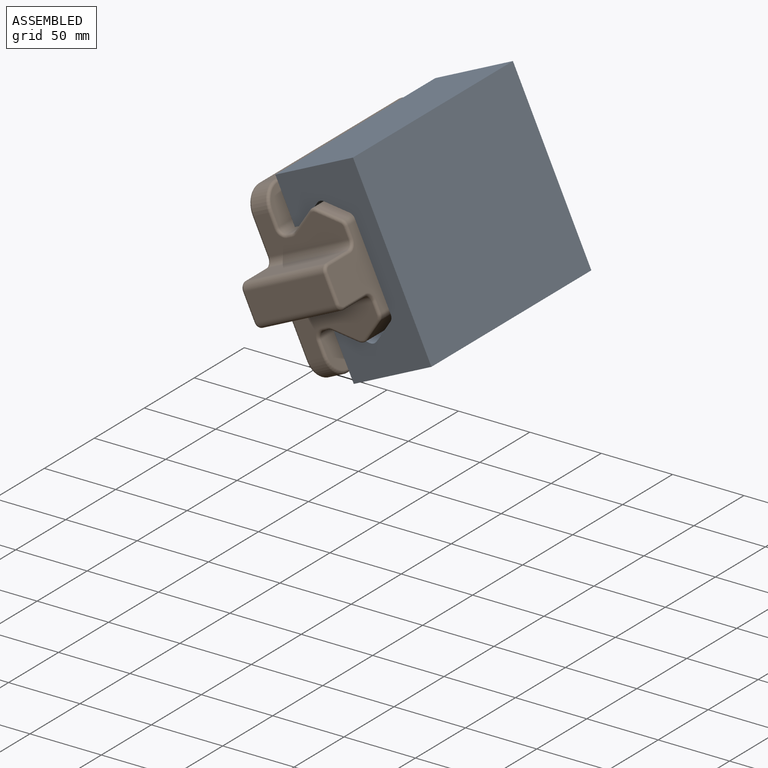
[diagram: assembled view]
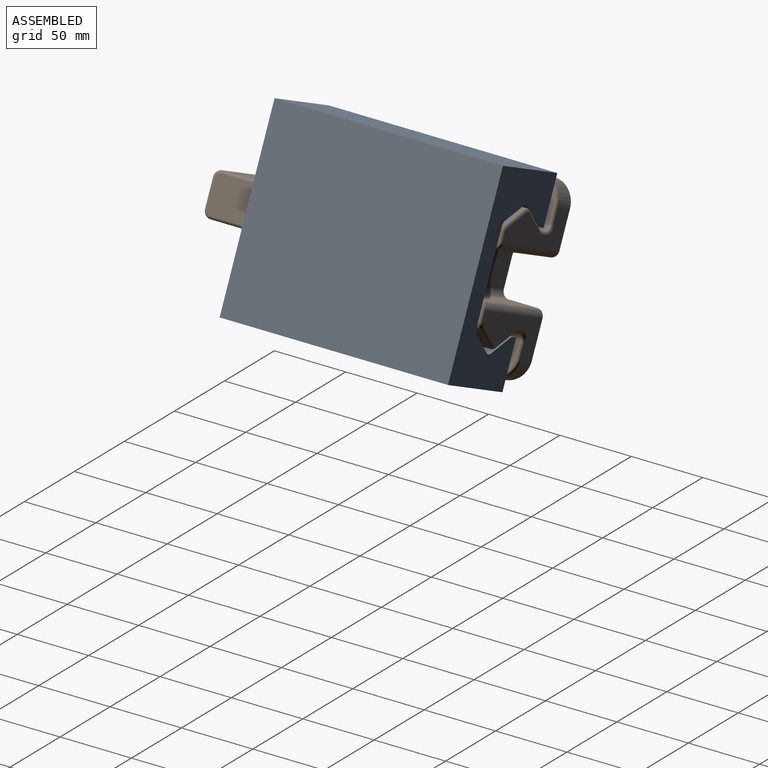
[diagram: assembled view, second angle]
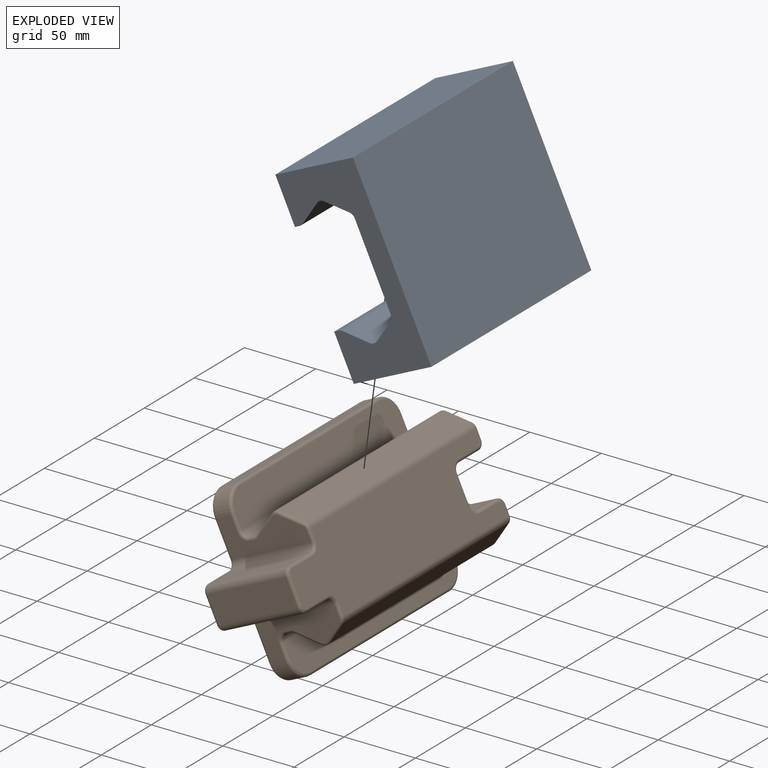
[diagram: exploded view]
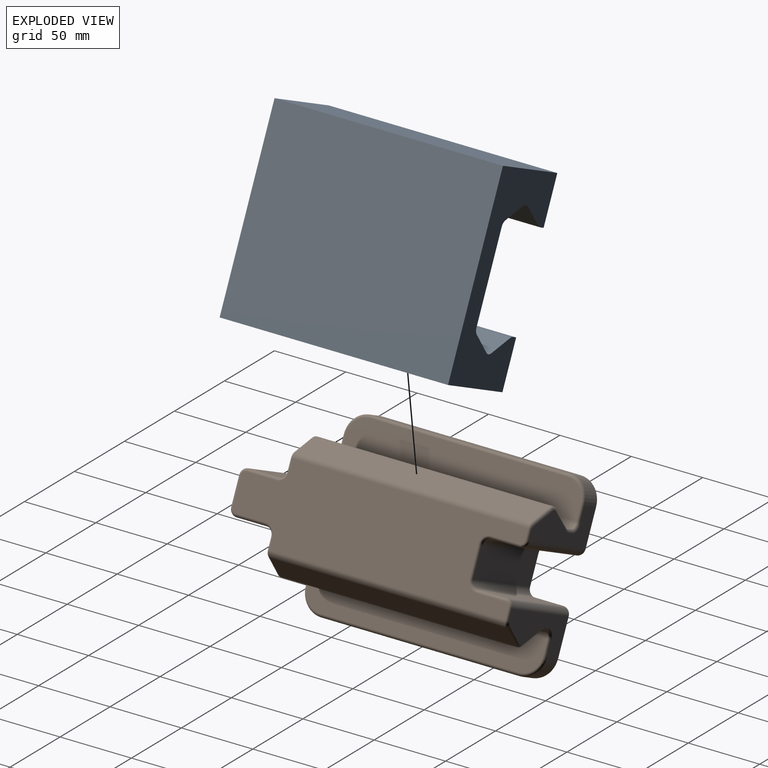
[diagram: exploded view, second angle]
ASSEMBLY  parts=2 mates=2
PART A: 20 faces, bbox 130x160x60 mm
  f0: plane 160x16.08mm, normal (-0.84,0,-0.54), area 3051.4mm2, adj f12,f13,f14,f19
  f1: plane 160x15mm, normal (-0.84,0,0.54), area 2845.7mm2, adj f12,f13,f14,f15
  f2: plane 160x59.51mm, normal (0,0,1), area 9522.2mm2, adj f12,f13,f15,f16
  f3: plane 160x15mm, normal (0.84,0,0.54), area 2845.7mm2, adj f12,f13,f16,f17
  f4: plane 160x16.08mm, normal (0.84,0,-0.54), area 3051.4mm2, adj f12,f13,f17,f18
  f5: plane 160x3.54mm, normal (1,0,0), area 566.8mm2, adj f6,f12,f13,f18
  f6: plane 160x32.5mm, normal (0,0,1), area 5200mm2, adj f5,f7,f12,f13
  f7: plane 160x60mm, normal (-1,0,0), area 9600mm2, adj f6,f8,f12,f13
  f8: plane 160x130mm, normal (0,0,-1), area 20800mm2, adj f7,f9,f12,f13
  f9: plane 160x60mm, normal (1,0,0), area 9600mm2, adj f8,f10,f12,f13
  f10: plane 160x32.5mm, normal (0,0,1), area 5200mm2, adj f9,f11,f12,f13
  f11: plane 160x3.54mm, normal (-1,0,0), area 566.8mm2, adj f10,f12,f13,f19
  f12: plane 130x60mm, normal (0,-1,0), area 4370.8mm2, adj f0,f1,f2,f3,f4,f5,f6,f7
  f13: plane 130x60mm, normal (0,1,0), area 4370.8mm2, adj f0,f1,f2,f3,f4,f5,f6,f7
  f14: cylinder r=5mm len=160mm, axis (0,-1,0), area 907.6mm2, adj f0,f1,f12,f13
  f15: cylinder r=5mm len=160mm, axis (0,-1,0), area 802.9mm2, adj f1,f2,f12,f13
  f16: cylinder r=5mm len=160mm, axis (0,-1,0), area 802.9mm2, adj f2,f3,f12,f13
  f17: cylinder r=5mm len=160mm, axis (0,-1,0), area 907.6mm2, adj f3,f4,f12,f13
  f18: cylinder r=5mm len=160mm, axis (0,1,0), area 453.8mm2, adj f4,f5,f12,f13
  f19: cylinder r=5mm len=160mm, axis (0,-1,0), area 453.8mm2, adj f0,f11,f12,f13
PART B: 122 faces, bbox 122.5x201.6x65.4 mm
  f0: plane 139x11mm, normal (-1,0,0), area 1529mm2, adj f31,f33,f69,f109
  f1: plane 139x11mm, normal (1,0,0), area 1529mm2, adj f30,f32,f70,f110
  f2: plane 196x116mm, normal (0,0,-1), area 18784.3mm2, adj f98,f99,f100,f101,f102,f103,f104,f105
  f3: plane 196x54.51mm, normal (0,0,1), area 8784.1mm2, adj f36,f37,f42,f43,f44,f45,f46,f47
  f4: plane 61x19mm, normal (0,-1,0), area 1159mm2, adj f26,f28,f42,f98
  f5: plane 61x25mm, normal (0,1,0), area 924.4mm2, adj f22,f32,f74,f76,f78,f80,f82,f84
  f6: plane 165x16.08mm, normal (-0.84,0,-0.54), area 3146.7mm2, adj f38,f39,f57,f81
  f7: plane 165x3.54mm, normal (-1,0,0), area 584.5mm2, adj f39,f40,f61,f77
  f8: plane 165x23mm, normal (0,0,1), area 3722.5mm2, adj f40,f65,f67,f69,f71,f73
  f9: plane 165x23mm, normal (0,0,1), area 3722.5mm2, adj f41,f66,f68,f70,f72,f74
  f10: plane 165x3.54mm, normal (1,0,0), area 584.5mm2, adj f34,f41,f62,f78
  f11: plane 165x16.08mm, normal (0.84,0,-0.54), area 3146.7mm2, adj f34,f35,f58,f82
  f12: plane 165x15mm, normal (0.84,0,0.54), area 2934.6mm2, adj f35,f36,f54,f86
  f13: plane 165x15mm, normal (-0.84,0,0.54), area 2934.6mm2, adj f37,f38,f53,f85
  f14: plane 61x25mm, normal (0,1,0), area 924.4mm2, adj f23,f33,f73,f75,f77,f79,f81,f83
  f15: plane 61x20mm, normal (0,1,0), area 1220mm2, adj f24,f25,f97,f121
  f16: plane 61x20mm, normal (-1,0,0), area 1220mm2, adj f22,f24,f94,f118
  f17: plane 61x20mm, normal (1,0,0), area 1220mm2, adj f23,f25,f93,f117
  f18: plane 61x21mm, normal (-1,0,0), area 1281mm2, adj f28,f29,f45,f101
  f19: plane 61x25.5mm, normal (0,-1,0), area 954.9mm2, adj f29,f31,f49,f51,f53,f55,f57,f59
  f20: plane 61x21mm, normal (1,0,0), area 1281mm2, adj f26,f27,f46,f102
  f21: plane 61x25.5mm, normal (0,-1,0), area 954.9mm2, adj f27,f30,f50,f52,f54,f56,f58,f60
  f22: cylinder r=5mm len=61mm, axis (0,0,1), area 479.1mm2, adj f5,f16,f92,f116
  f23: cylinder r=5mm len=61mm, axis (0,0,-1), area 479.1mm2, adj f14,f17,f91,f115
  f24: cylinder r=5mm len=61mm, axis (0,0,1), area 479.1mm2, adj f15,f16,f96,f120
  f25: cylinder r=5mm len=61mm, axis (0,0,-1), area 479.1mm2, adj f15,f17,f95,f119
  f26: cylinder r=5mm len=61mm, axis (0,0,1), area 479.1mm2, adj f4,f20,f44,f100
  f27: cylinder r=5mm len=61mm, axis (0,0,1), area 479.1mm2, adj f20,f21,f48,f104
  f28: cylinder r=5mm len=61mm, axis (0,0,1), area 479.1mm2, adj f4,f18,f43,f99
  f29: cylinder r=5mm len=61mm, axis (0,0,1), area 479.1mm2, adj f18,f19,f47,f103
  f30: cylinder r=15mm len=15mm, axis (0,0,1), area 259.2mm2, adj f1,f21,f68,f108
  f31: cylinder r=15mm len=15mm, axis (0,0,-1), area 259.2mm2, adj f0,f19,f67,f107
  f32: cylinder r=15mm len=15mm, axis (0,0,1), area 259.2mm2, adj f1,f5,f72,f112
  f33: cylinder r=15mm len=15mm, axis (0,0,-1), area 259.2mm2, adj f0,f14,f71,f111
  f34: cylinder r=5mm len=165mm, axis (0,-1,0), area 468mm2, adj f10,f11,f60,f80
  f35: cylinder r=5mm len=165mm, axis (0,1,0), area 935.9mm2, adj f11,f12,f56,f84
  f36: cylinder r=5mm len=165mm, axis (0,-1,0), area 827.9mm2, adj f3,f12,f52,f88
  f37: cylinder r=5mm len=165mm, axis (0,1,0), area 827.9mm2, adj f3,f13,f51,f87
  f38: cylinder r=5mm len=165mm, axis (0,1,0), area 935.9mm2, adj f6,f13,f55,f83
  f39: cylinder r=5mm len=165mm, axis (0,-1,0), area 468mm2, adj f6,f7,f59,f79
  f40: cylinder r=5mm len=165mm, axis (0,-1,0), area 1295.9mm2, adj f7,f8,f63,f75
  f41: cylinder r=5mm len=165mm, axis (0,-1,0), area 1295.9mm2, adj f9,f10,f64,f76
  f42: cylinder r=2mm len=19mm, axis (1,0,0), area 59.7mm2, adj f3,f4,f43,f44
  f43: torus R=3mm, axis (0,0,-1), area 21.1mm2, adj f3,f28,f42,f45
  f44: torus R=3mm, axis (0,0,-1), area 21.1mm2, adj f3,f26,f42,f46
  f45: cylinder r=2mm len=21mm, axis (0,-1,0), area 66mm2, adj f3,f18,f43,f47
  f46: cylinder r=2mm len=21mm, axis (0,1,0), area 66mm2, adj f3,f20,f44,f48
  f47: torus R=7mm, axis (0,0,-1), area 28.3mm2, adj f3,f29,f45,f49
  f48: torus R=7mm, axis (0,0,-1), area 28.3mm2, adj f3,f27,f46,f50
  f49: cylinder r=2mm len=7.76mm, axis (1,0,0), area 24.4mm2, adj f3,f19,f47,f51
  f50: cylinder r=2mm len=7.76mm, axis (1,0,0), area 24.4mm2, adj f3,f21,f48,f52
  f51: torus R=3mm, axis (0,1,0), area 13.5mm2, adj f19,f37,f49,f53
  f52: torus R=3mm, axis (0,1,0), area 13.5mm2, adj f21,f36,f50,f54
  f53: cylinder r=2mm len=16.07mm, axis (0.54,0,0.84), area 55.9mm2, adj f13,f19,f51,f55
  f54: cylinder r=2mm len=16.07mm, axis (0.54,0,-0.84), area 55.9mm2, adj f12,f21,f52,f56
  f55: torus R=3mm, axis (0,1,0), area 15.2mm2, adj f19,f38,f53,f57
  f56: torus R=3mm, axis (0,1,0), area 15.2mm2, adj f21,f35,f54,f58
  f57: cylinder r=2mm len=17.16mm, axis (-0.54,0,0.84), area 59.9mm2, adj f6,f19,f55,f59
  f58: cylinder r=2mm len=17.16mm, axis (-0.54,0,-0.84), area 59.9mm2, adj f11,f21,f56,f60
  f59: torus R=7mm, axis (0,1,0), area 10.2mm2, adj f19,f39,f57,f61
  f60: torus R=7mm, axis (0,1,0), area 10.2mm2, adj f21,f34,f58,f62
  f61: cylinder r=2mm len=3.54mm, axis (0,0,1), area 11.1mm2, adj f7,f19,f59,f63
  f62: cylinder r=2mm len=3.54mm, axis (0,0,-1), area 11.1mm2, adj f10,f21,f60,f64
  f63: torus R=7mm, axis (0,1,0), area 28.3mm2, adj f19,f40,f61,f65
  f64: torus R=7mm, axis (0,1,0), area 28.3mm2, adj f21,f41,f62,f66
  f65: cylinder r=2mm len=10mm, axis (1,0,0), area 31.4mm2, adj f8,f19,f63,f67
  f66: cylinder r=2mm len=10mm, axis (1,0,0), area 31.4mm2, adj f9,f21,f64,f68
  f67: torus R=13mm, axis (0,0,-1), area 70.4mm2, adj f8,f31,f65,f69
  f68: torus R=13mm, axis (0,0,1), area 70.4mm2, adj f9,f30,f66,f70
  f69: cylinder r=2mm len=139mm, axis (0,1,0), area 436.7mm2, adj f0,f8,f67,f71
  f70: cylinder r=2mm len=139mm, axis (0,1,0), area 436.7mm2, adj f1,f9,f68,f72
  f71: torus R=13mm, axis (0,0,-1), area 70.4mm2, adj f8,f33,f69,f73
  f72: torus R=13mm, axis (0,0,1), area 70.4mm2, adj f9,f32,f70,f74
  f73: cylinder r=2mm len=10mm, axis (-1,0,0), area 31.4mm2, adj f8,f14,f71,f75
  f74: cylinder r=2mm len=10mm, axis (-1,0,0), area 31.4mm2, adj f5,f9,f72,f76
  f75: torus R=7mm, axis (0,-1,0), area 28.3mm2, adj f14,f40,f73,f77
  f76: torus R=7mm, axis (0,-1,0), area 28.3mm2, adj f5,f41,f74,f78
  f77: cylinder r=2mm len=3.54mm, axis (0,0,-1), area 11.1mm2, adj f7,f14,f75,f79
  f78: cylinder r=2mm len=3.54mm, axis (0,0,1), area 11.1mm2, adj f5,f10,f76,f80
  f79: torus R=7mm, axis (0,-1,0), area 10.2mm2, adj f14,f39,f77,f81
  f80: torus R=7mm, axis (0,-1,0), area 10.2mm2, adj f5,f34,f78,f82
  f81: cylinder r=2mm len=17.16mm, axis (0.54,0,-0.84), area 59.9mm2, adj f6,f14,f79,f83
  f82: cylinder r=2mm len=17.16mm, axis (0.54,0,0.84), area 59.9mm2, adj f5,f11,f80,f84
  f83: torus R=3mm, axis (0,-1,0), area 15.2mm2, adj f14,f38,f81,f85
  f84: torus R=3mm, axis (0,-1,0), area 15.2mm2, adj f5,f35,f82,f86
  f85: cylinder r=2mm len=16.07mm, axis (-0.54,0,-0.84), area 55.9mm2, adj f13,f14,f83,f87
  f86: cylinder r=2mm len=16.07mm, axis (-0.54,0,0.84), area 55.9mm2, adj f5,f12,f84,f88
  f87: torus R=3mm, axis (0,-1,0), area 13.5mm2, adj f14,f37,f85,f89
  f88: torus R=3mm, axis (0,-1,0), area 13.5mm2, adj f5,f36,f86,f90
  f89: cylinder r=2mm len=7.26mm, axis (-1,0,0), area 22.8mm2, adj f3,f14,f87,f91
  f90: cylinder r=2mm len=7.26mm, axis (-1,0,0), area 22.8mm2, adj f3,f5,f88,f92
  f91: torus R=3mm, axis (0,0,-1), area 21.1mm2, adj f3,f23,f89,f93
  f92: torus R=3mm, axis (0,0,-1), area 21.1mm2, adj f3,f22,f90,f94
  f93: cylinder r=2mm len=20mm, axis (0,1,0), area 62.8mm2, adj f3,f17,f91,f95
  f94: cylinder r=2mm len=20mm, axis (0,-1,0), area 62.8mm2, adj f3,f16,f92,f96
  f95: torus R=7mm, axis (0,0,-1), area 28.3mm2, adj f3,f25,f93,f97
  f96: torus R=7mm, axis (0,0,-1), area 28.3mm2, adj f3,f24,f94,f97
  f97: cylinder r=2mm len=20mm, axis (-1,0,0), area 62.8mm2, adj f3,f15,f95,f96
  f98: cylinder r=2mm len=19mm, axis (-1,0,0), area 59.7mm2, adj f2,f4,f99,f100
  f99: torus R=3mm, axis (0,0,-1), area 21.1mm2, adj f2,f28,f98,f101
  f100: torus R=3mm, axis (0,0,-1), area 21.1mm2, adj f2,f26,f98,f102
  f101: cylinder r=2mm len=21mm, axis (0,1,0), area 66mm2, adj f2,f18,f99,f103
  f102: cylinder r=2mm len=21mm, axis (0,-1,0), area 66mm2, adj f2,f20,f100,f104
  f103: torus R=7mm, axis (0,0,-1), area 28.3mm2, adj f2,f29,f101,f105
  f104: torus R=7mm, axis (0,0,-1), area 28.3mm2, adj f2,f27,f102,f106
  f105: cylinder r=2mm len=25.5mm, axis (-1,0,0), area 80.1mm2, adj f2,f19,f103,f107
  f106: cylinder r=2mm len=25.5mm, axis (-1,0,0), area 80.1mm2, adj f2,f21,f104,f108
  f107: torus R=13mm, axis (0,0,-1), area 70.4mm2, adj f2,f31,f105,f109
  f108: torus R=13mm, axis (0,0,-1), area 70.4mm2, adj f2,f30,f106,f110
  f109: cylinder r=2mm len=139mm, axis (0,-1,0), area 436.7mm2, adj f0,f2,f107,f111
  f110: cylinder r=2mm len=139mm, axis (0,1,0), area 436.7mm2, adj f1,f2,f108,f112
  f111: torus R=13mm, axis (0,0,-1), area 70.4mm2, adj f2,f33,f109,f113
  f112: torus R=13mm, axis (0,0,-1), area 70.4mm2, adj f2,f32,f110,f114
  f113: cylinder r=2mm len=25mm, axis (1,0,0), area 78.5mm2, adj f2,f14,f111,f115
  f114: cylinder r=2mm len=25mm, axis (1,0,0), area 78.5mm2, adj f2,f5,f112,f116
  f115: torus R=3mm, axis (0,0,-1), area 21.1mm2, adj f2,f23,f113,f117
  f116: torus R=3mm, axis (0,0,-1), area 21.1mm2, adj f2,f22,f114,f118
  f117: cylinder r=2mm len=20mm, axis (0,-1,0), area 62.8mm2, adj f2,f17,f115,f119
  f118: cylinder r=2mm len=20mm, axis (0,1,0), area 62.8mm2, adj f2,f16,f116,f120
  f119: torus R=7mm, axis (0,0,-1), area 28.3mm2, adj f2,f25,f117,f121
  f120: torus R=7mm, axis (0,0,-1), area 28.3mm2, adj f2,f24,f118,f121
  f121: cylinder r=2mm len=20mm, axis (1,0,0), area 62.8mm2, adj f2,f15,f119,f120
PLACE A rot(axis=(0,-1,0),115deg) t=(60.41,93.29,40.36)mm
PLACE B rot(axis=(0,1,0),65deg) t=(15.48,94.95,20.13)mm
MATE parallel A.f1 <-> B.f13  axis (-0.13,0,-0.99) through (21.55,13.29,65)mm
MATE parallel B.f12 <-> A.f3  axis (0.84,0,-0.54) through (51.36,10.45,-3.13)mm
